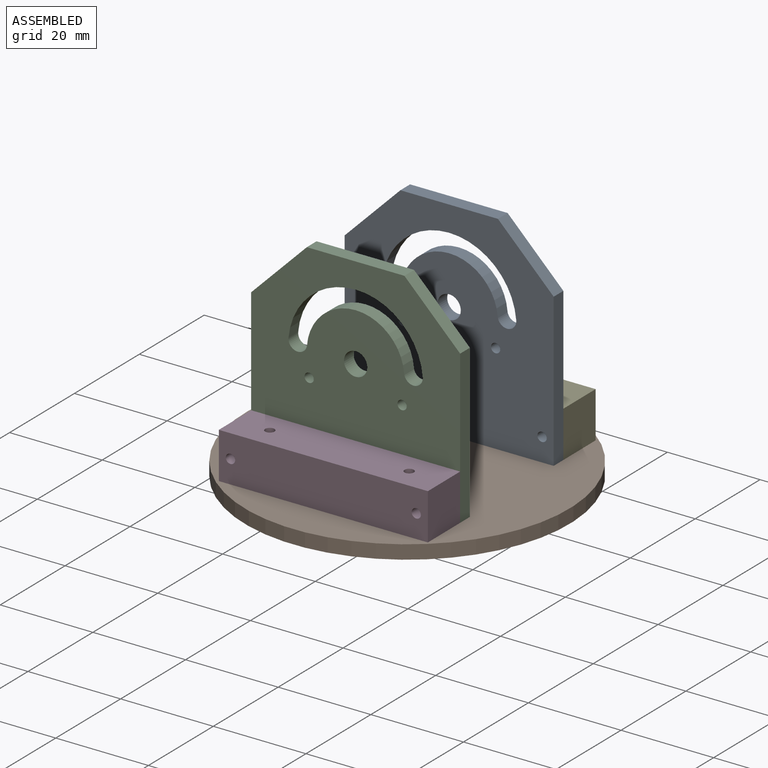
[diagram: assembled view]
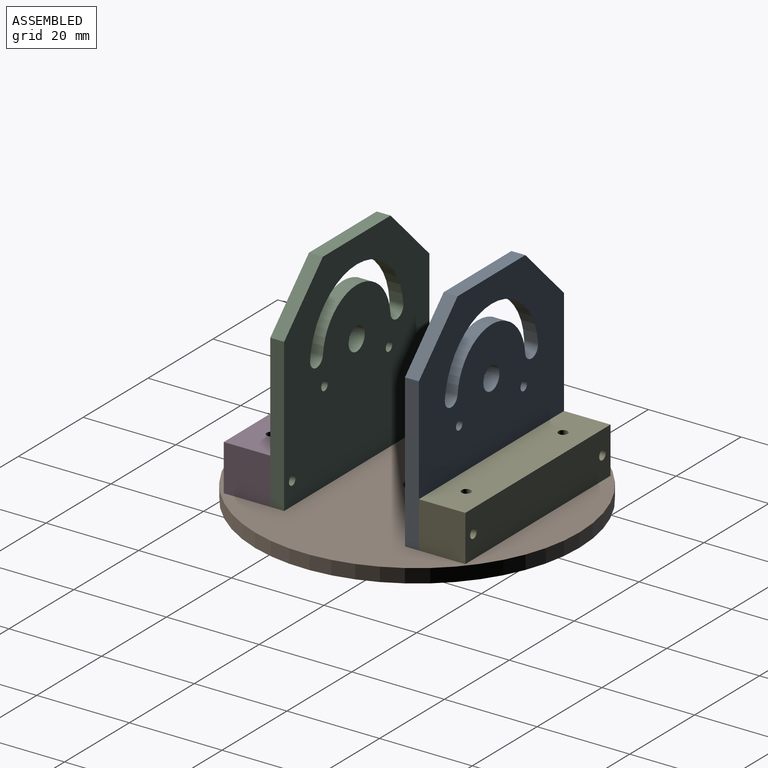
[diagram: assembled view, second angle]
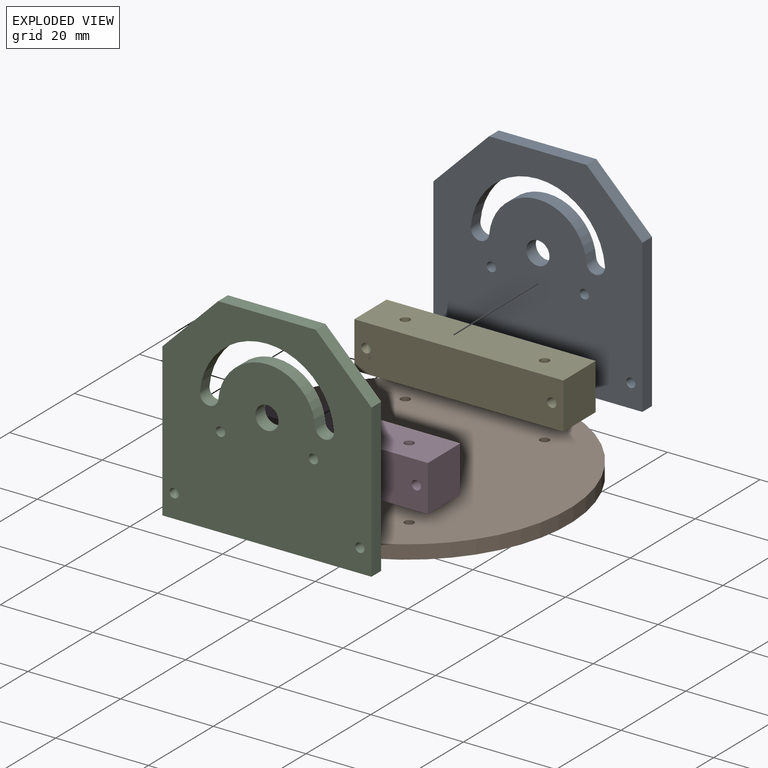
[diagram: exploded view]
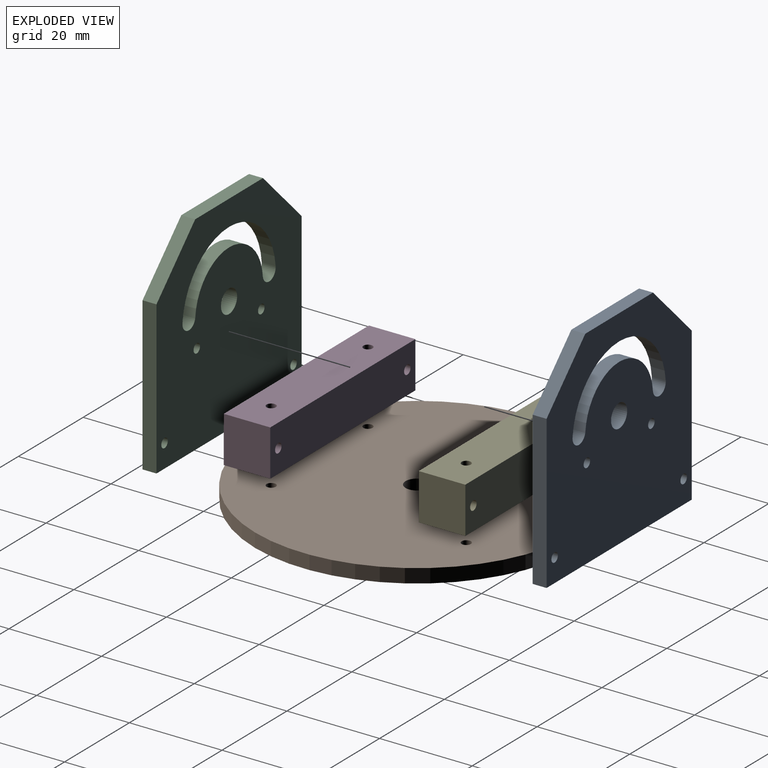
[diagram: exploded view, second angle]
ASSEMBLY  parts=5 mates=8
PART A: 17 faces, bbox 45x3x45 mm
  f0: cylinder r=2mm len=3.99mm, axis (0,1,0), area 18.8mm2, adj f1,f12,f15,f16
  f1: cylinder r=14.5mm len=28.89mm, axis (0,1,0), area 129.1mm2, adj f0,f2,f15,f16
  f2: cylinder r=2mm len=3.99mm, axis (0,1,0), area 18.8mm2, adj f1,f12,f15,f16
  f3: plane 33x3mm, normal (-1,0,0), area 99mm2, adj f4,f13,f15,f16
  f4: plane 45x3mm, normal (0,0,-1), area 135mm2, adj f3,f5,f15,f16
  f5: plane 33x3mm, normal (1,0,0), area 99mm2, adj f4,f6,f15,f16
  f6: plane 12x12mm, normal (0.71,0,0.71), area 50.9mm2, adj f5,f7,f15,f16
  f7: plane 21x3mm, normal (0,0,1), area 63mm2, adj f6,f13,f15,f16
  f8: cylinder r=1mm len=3mm, axis (0,1,0), area 18.8mm2, adj f15,f16
  f9: cylinder r=1mm len=3mm, axis (0,1,0), area 18.8mm2, adj f15,f16
  f10: cylinder r=1mm len=3mm, axis (0,1,0), area 18.8mm2, adj f15,f16
  f11: cylinder r=2.5mm len=5mm, axis (0,1,0), area 47.1mm2, adj f15,f16
  f12: cylinder r=10.5mm len=20.92mm, axis (0,1,0), area 93.5mm2, adj f0,f2,f15,f16
  f13: plane 12x12mm, normal (-0.71,0,0.71), area 50.9mm2, adj f3,f7,f15,f16
  f14: cylinder r=1mm len=3mm, axis (0,1,0), area 18.8mm2, adj f15,f16
  f15: plane 45x45mm, normal (0,-1,0), area 1687.9mm2, adj f0,f1,f2,f3,f4,f5,f6,f7
  f16: plane 45x45mm, normal (0,1,0), area 1687.9mm2, adj f0,f1,f2,f3,f4,f5,f6,f7
PART B: 9 faces, bbox 70x70x3 mm
  f0: cylinder r=1mm len=3mm, axis (0,0,-1), area 18.8mm2, adj f7,f8
  f1: cylinder r=1mm len=3mm, axis (0,0,-1), area 18.8mm2, adj f7,f8
  f2: cylinder r=1mm len=3mm, axis (0,0,-1), area 18.8mm2, adj f7,f8
  f3: cylinder r=1mm len=3mm, axis (0,0,-1), area 18.8mm2, adj f7,f8
  f4: cylinder r=2.5mm len=5mm, axis (0,0,-1), area 47.1mm2, adj f7,f8
  f5: cylinder r=0.5mm len=3mm, axis (0,0,-1), area 9.4mm2, adj f7,f8
  f6: cylinder r=35mm len=70mm, axis (0,0,-1), area 659.7mm2, adj f7,f8
  f7: plane 70x70mm, normal (0,0,1), area 3815.5mm2, adj f0,f1,f2,f3,f4,f5,f6
  f8: plane 70x70mm, normal (0,0,-1), area 3815.5mm2, adj f0,f1,f2,f3,f4,f5,f6
PART C: same geometry as A
PART D: 10 faces, bbox 10x45x10 mm
  f0: plane 45x10mm, normal (0,0,1), area 443.7mm2, adj f1,f3,f4,f5,f6,f7
  f1: plane 45x10mm, normal (-1,0,0), area 443.7mm2, adj f0,f2,f4,f5,f8,f9
  f2: plane 45x10mm, normal (0,0,-1), area 443.7mm2, adj f1,f3,f4,f5,f6,f7
  f3: plane 45x10mm, normal (1,0,0), area 443.7mm2, adj f0,f2,f4,f5,f8,f9
  f4: plane 10x10mm, normal (0,-1,0), area 100mm2, adj f0,f1,f2,f3
  f5: plane 10x10mm, normal (0,1,0), area 100mm2, adj f0,f1,f2,f3
  f6: cylinder r=1mm len=10mm, axis (0,0,1), area 62.8mm2, adj f0,f2
  f7: cylinder r=1mm len=10mm, axis (0,0,1), area 62.8mm2, adj f0,f2
  f8: cylinder r=1mm len=10mm, axis (1,0,0), area 62.8mm2, adj f1,f3
  f9: cylinder r=1mm len=10mm, axis (1,0,0), area 62.8mm2, adj f1,f3
PART E: same geometry as D
PLACE A rot(axis=(0,0,-1),179.8deg) t=(-0.2,13.01,5.64)mm
PLACE B rot(axis=(0,0,1),90.2deg) t=(-0.15,0.01,2.64)mm
PLACE C rot(axis=(0,0,1),0.2deg) t=(-0.1,-12.99,5.64)mm
PLACE D rot(axis=(0,0,1),90.2deg) t=(-0.07,-20.99,10.64)mm
PLACE E rot(axis=(0,0,1),90.2deg) t=(-0.23,21.01,10.64)mm
MATE revolute C.f9 <-> D.f9  axis (0,-1,0) through (19.91,-15.91,10.64)mm
MATE revolute D.f7 <-> B.f1  axis (0,0,-1) through (14.93,-20.93,5.64)mm
MATE revolute A.f10 <-> E.f9  axis (0,1,0) through (19.79,16.09,10.64)mm
MATE revolute A.f9 <-> E.f8  axis (0,1,0) through (-20.21,15.93,10.64)mm
MATE revolute E.f6 <-> B.f2  axis (0,0,-1) through (-15.23,20.95,5.64)mm
MATE revolute D.f6 <-> B.f0  axis (0,0,-1) through (-15.07,-21.05,5.64)mm
MATE revolute C.f10 <-> D.f8  axis (0,-1,0) through (-20.09,-16.07,10.64)mm
MATE revolute E.f7 <-> B.f3  axis (0,0,-1) through (14.77,21.07,5.64)mm
